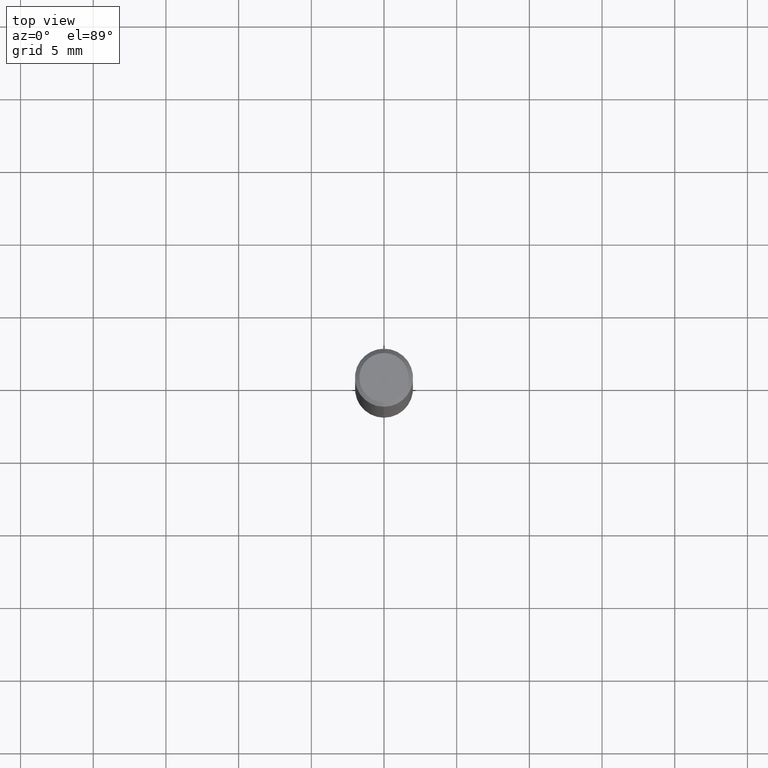
[diagram: clean part render]
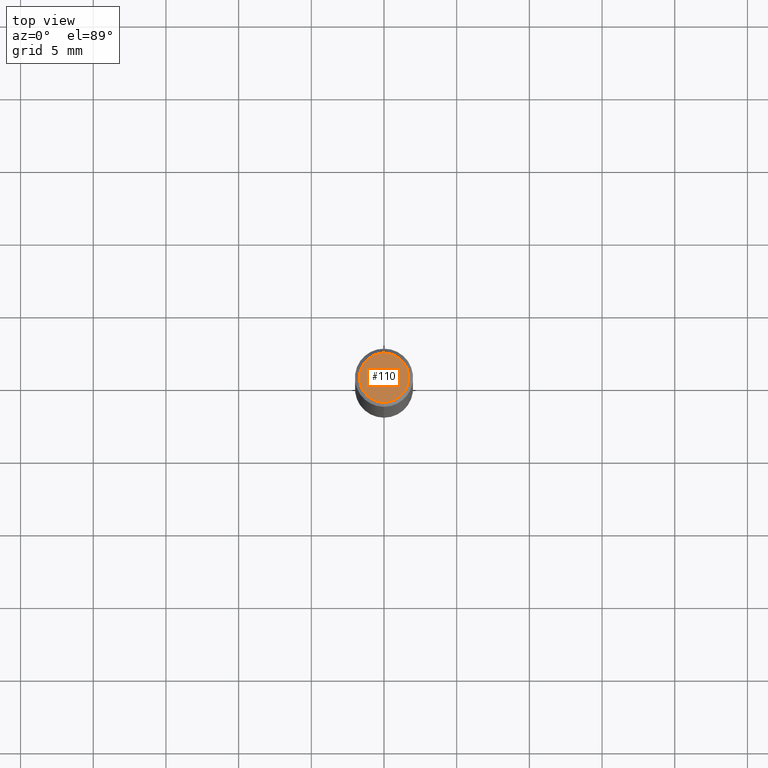
[diagram: same view with one face highlighted and labeled with its STEP entity id]
A machine part, top view. The second image highlights one B-rep face of the part: STEP entity #110.
In plain terms, the highlighted planar face has unit normal (-0, 0, 1).
Its self-contained STEP definition (entity closure, byte-faithful):
#86=VERTEX_POINT('',#211);
#110=ADVANCED_FACE('',(#241),#242,.T.);
#162=EDGE_CURVE('',#176,#86,#299,.T.);
#166=EDGE_CURVE('',#86,#176,#304,.T.);
#176=VERTEX_POINT('',#316);
#211=CARTESIAN_POINT('',(0.0,1.7,0.0));
#241=FACE_OUTER_BOUND('',#376,.T.);
#242=PLANE('',#377);
#299=CIRCLE('',#453,1.7);
#304=CIRCLE('',#459,1.7);
#316=CARTESIAN_POINT('',(2.08183080149804E-016,-1.7,0.0));
#376=EDGE_LOOP('',(#549,#550));
#377=AXIS2_PLACEMENT_3D('',#551,#552,#553);
#453=AXIS2_PLACEMENT_3D('',#620,#621,#622);
#459=AXIS2_PLACEMENT_3D('',#631,#632,#633);
#549=ORIENTED_EDGE('',*,*,#166,.F.);
#550=ORIENTED_EDGE('',*,*,#162,.F.);
#551=CARTESIAN_POINT('',(0.0,0.85,0.0));
#552=DIRECTION('',(-0.0,0.0,1.0));
#553=DIRECTION('',(0.0,-1.0,0.0));
#620=CARTESIAN_POINT('',(0.0,0.0,0.0));
#621=DIRECTION('',(0.0,0.0,-1.0));
#622=DIRECTION('',(0.0,1.0,0.0));
#631=CARTESIAN_POINT('',(0.0,0.0,0.0));
#632=DIRECTION('',(0.0,0.0,-1.0));
#633=DIRECTION('',(0.0,1.0,0.0));